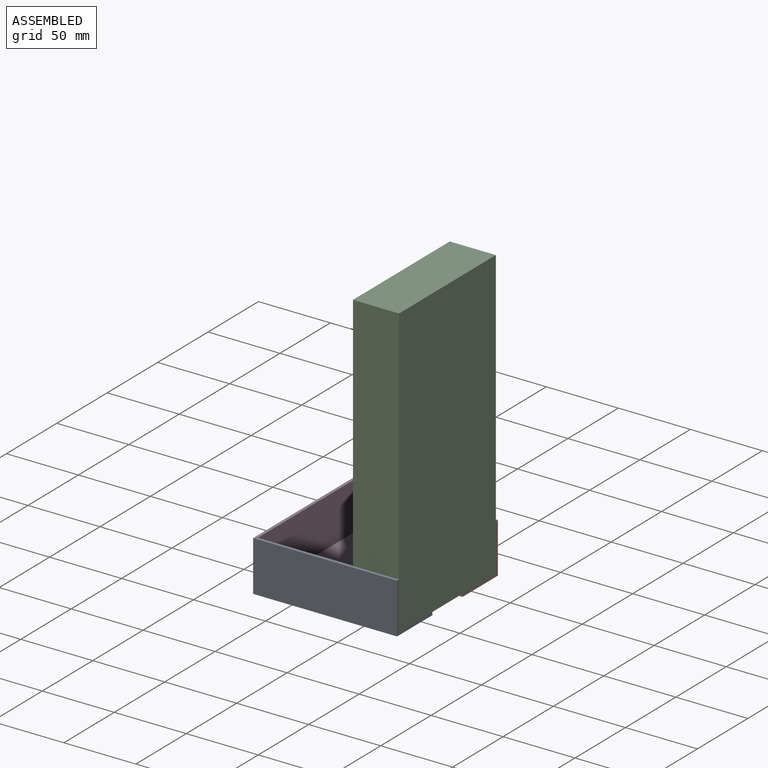
[diagram: assembled view]
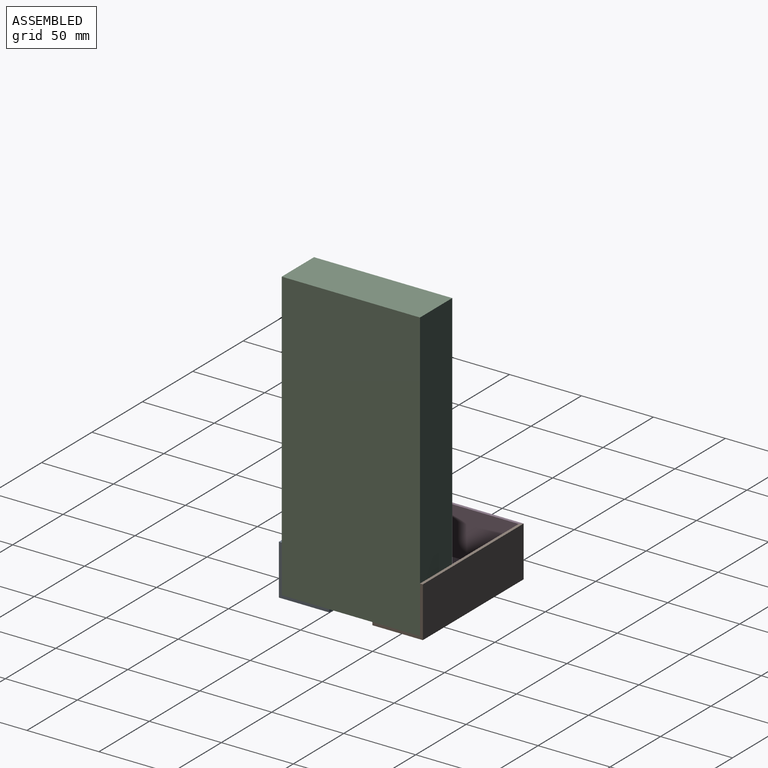
[diagram: assembled view, second angle]
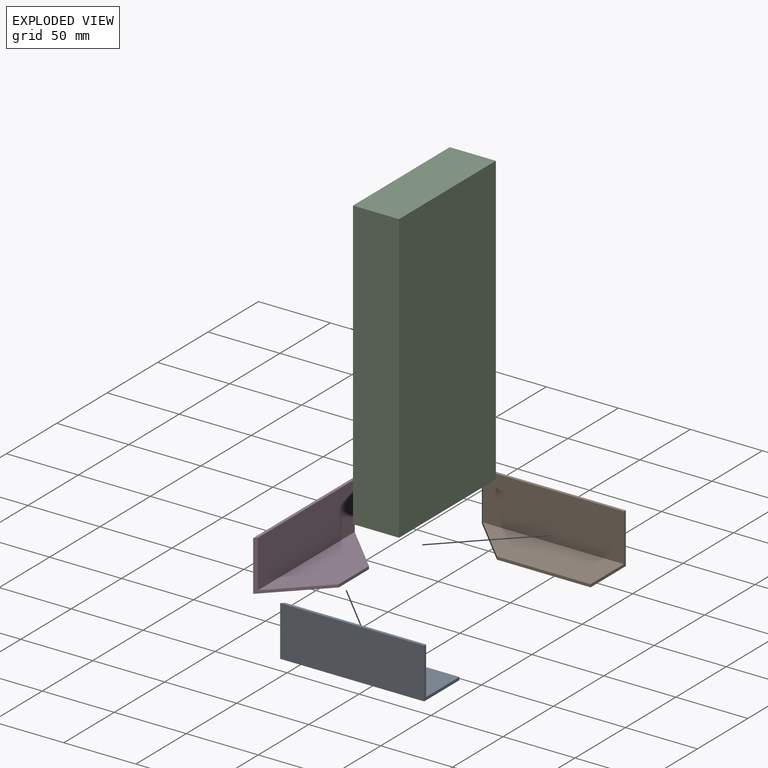
[diagram: exploded view]
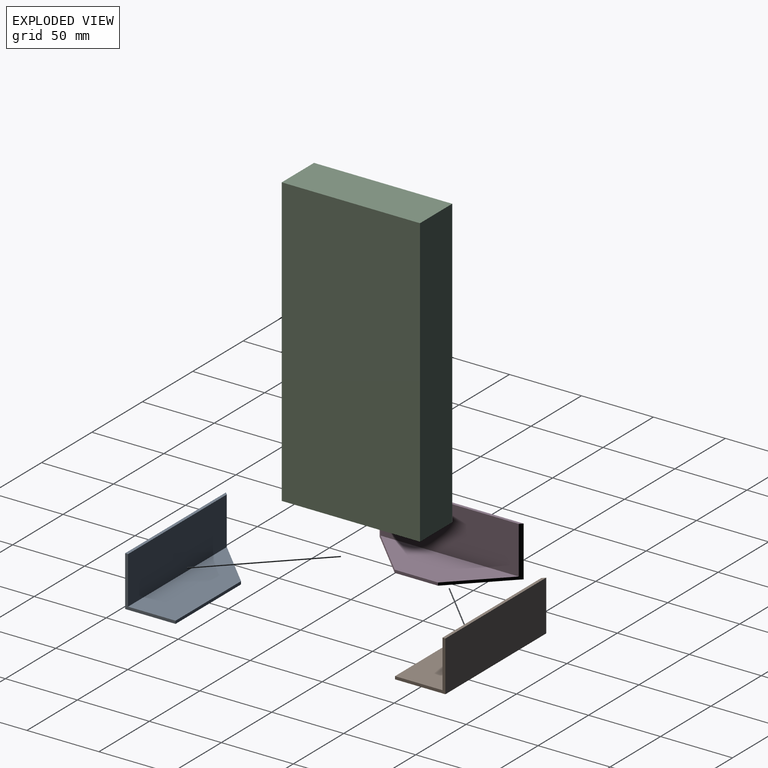
[diagram: exploded view, second angle]
ASSEMBLY  parts=4 mates=3
PART A: 8 faces, bbox 100x35x35 mm
  f0: plane 100x2mm, normal (0,0,1), area 198mm2, adj f1,f5,f6,f7
  f1: plane 100x35mm, normal (0,-1,0), area 3500mm2, adj f0,f2,f6,f7
  f2: plane 100x35mm, normal (0,0,-1), area 2887.5mm2, adj f1,f3,f6,f7
  f3: plane 65x2mm, normal (0,1,0), area 130mm2, adj f2,f4,f6,f7
  f4: plane 98x33mm, normal (0,0,1), area 2689.5mm2, adj f3,f5,f6,f7
  f5: plane 98x33mm, normal (0,1,0), area 3234mm2, adj f0,f4,f6,f7
  f6: plane 35x35mm, normal (1,0,0), area 136mm2, adj f0,f1,f2,f3,f4,f5
  f7: plane 35x35mm, normal (-0.71,0.71,0), area 192.3mm2, adj f0,f1,f2,f3,f4,f5
PART B: 8 faces, bbox 100x35x35 mm
  f0: plane 100x2mm, normal (0,0,1), area 198mm2, adj f1,f5,f6,f7
  f1: plane 100x35mm, normal (0,-1,0), area 3500mm2, adj f0,f2,f6,f7
  f2: plane 100x35mm, normal (0,0,-1), area 2887.5mm2, adj f1,f3,f6,f7
  f3: plane 65x2mm, normal (0,1,0), area 130mm2, adj f2,f4,f6,f7
  f4: plane 98x33mm, normal (0,0,1), area 2689.5mm2, adj f3,f5,f6,f7
  f5: plane 98x33mm, normal (0,1,0), area 3234mm2, adj f0,f4,f6,f7
  f6: plane 35x35mm, normal (-1,0,0), area 136mm2, adj f0,f1,f2,f3,f4,f5
  f7: plane 35x35mm, normal (0.71,0.71,0), area 192.3mm2, adj f0,f1,f2,f3,f4,f5
PART C: 6 faces, bbox 96x32x200 mm
  f0: plane 200x96mm, normal (0,1,0), area 19200mm2, adj f1,f3,f4,f5
  f1: plane 200x32mm, normal (-1,0,0), area 6400mm2, adj f0,f2,f4,f5
  f2: plane 200x96mm, normal (0,-1,0), area 19200mm2, adj f1,f3,f4,f5
  f3: plane 200x32mm, normal (1,0,0), area 6400mm2, adj f0,f2,f4,f5
  f4: plane 96x32mm, normal (0,0,1), area 3072mm2, adj f0,f1,f2,f3
  f5: plane 96x32mm, normal (0,0,-1), area 3072mm2, adj f0,f1,f2,f3
PART D: 8 faces, bbox 35x100x35 mm
  f0: plane 100x2mm, normal (0,0,1), area 196mm2, adj f1,f5,f6,f7
  f1: plane 100x35mm, normal (-1,0,0), area 3500mm2, adj f0,f2,f6,f7
  f2: plane 100x35mm, normal (0,0,-1), area 2275mm2, adj f1,f3,f6,f7
  f3: plane 30x2mm, normal (1,0,0), area 60mm2, adj f2,f4,f6,f7
  f4: plane 96x33mm, normal (0,0,1), area 2079mm2, adj f3,f5,f6,f7
  f5: plane 96x33mm, normal (1,0,0), area 3168mm2, adj f0,f4,f6,f7
  f6: plane 35x35mm, normal (0.71,-0.71,0), area 192.3mm2, adj f0,f1,f2,f3,f4,f5
  f7: plane 35x35mm, normal (0.71,0.71,0), area 192.3mm2, adj f0,f1,f2,f3,f4,f5
PLACE A t=(-422.2,-18.27,-233.62)mm
PLACE B rot(axis=(0,0,1),180deg) t=(-322.2,57.07,-233.62)mm
PLACE C rot(axis=(0,0,1),90deg) t=(-309.72,13.91,-243.95)mm
PLACE D t=(-376.53,69.4,-245.95)mm
MATE fastened A.f4 <-> C.f5  axis (0,0,1) through (-322.2,-28.6,-243.95)mm
MATE fastened D.f7 <-> B.f7  axis (0.71,0.71,0) through (-422.2,69.4,-228.45)mm
MATE fastened D.f6 <-> A.f7  axis (0.71,-0.71,0) through (-422.2,-30.6,-228.45)mm
